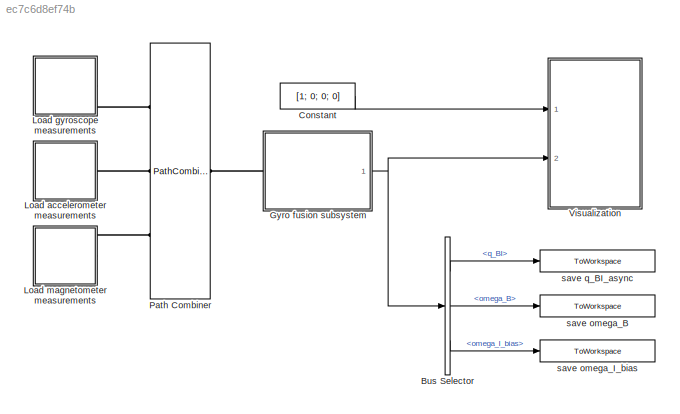
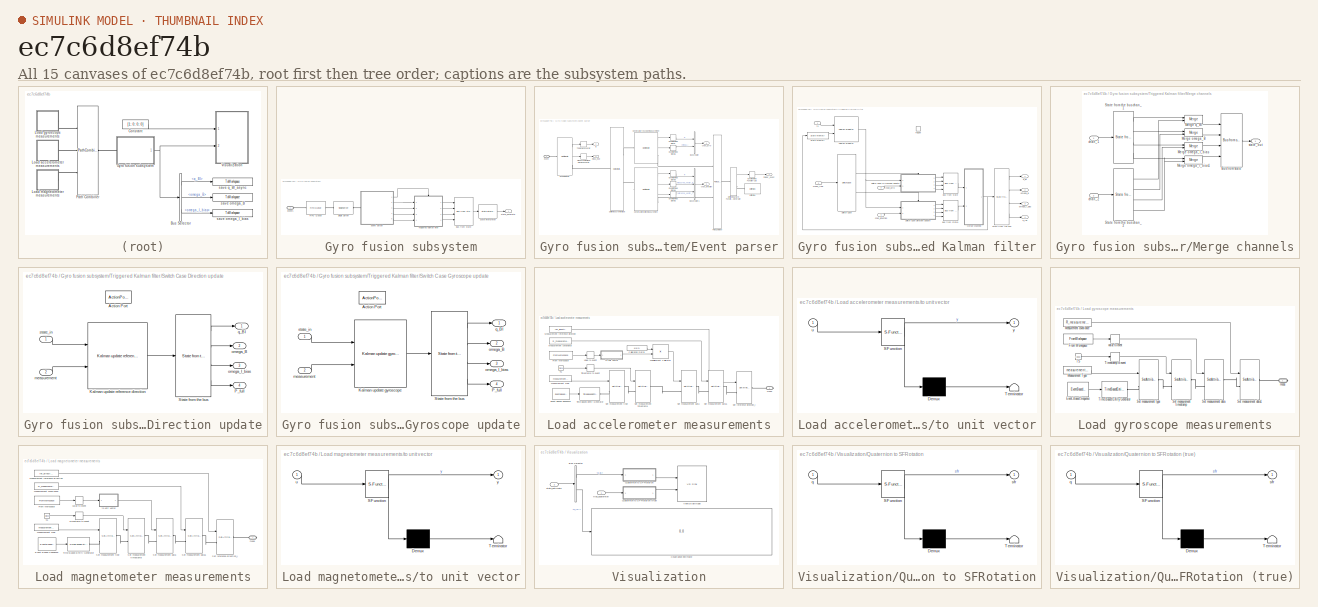
[diagram: thumbnail index - all 15 canvases of the model, root first then tree order]
MODEL slx_ec7c6d8ef74b
KIND model
BLOCK [BusSelector] Bus Selector
  OutputSignals = q_BI,omega_B,omega_I_bias
  Ports = [1, 3]
BLOCK [Constant] Constant
  Value = [1; 0; 0; 0]
BLOCK [SubSystem] Gyro fusion subsystem
  Ports = [0, 1, 0, 0, 0, 1]
  RequestExecContextInheritance = off
BLOCK [Reference] Gyro fusion subsystem/Bus from state  REF=lib_gyro_fusion/Bus from state  (lib defined in slx_a4b6311b9d1d)
  Ports = [4, 1]
  SourceBlock = lib_gyro_fusion/Bus from state
  SourceType = SubSystem
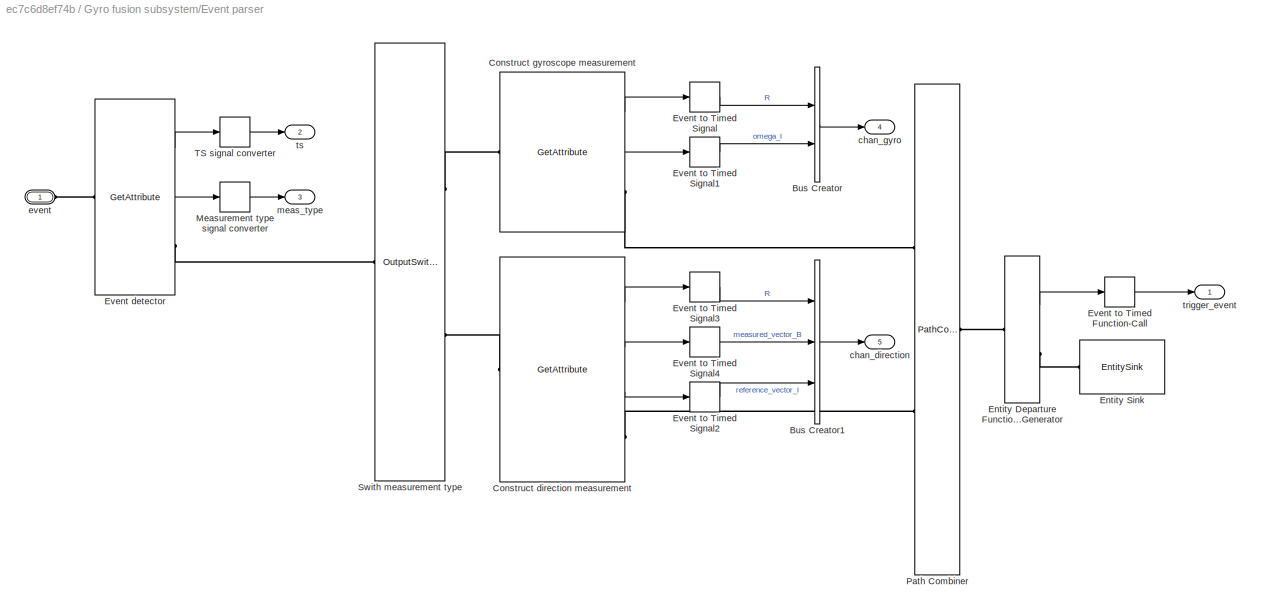
BLOCK [SubSystem] Gyro fusion subsystem/Event parser
  Ports = [0, 5, 0, 0, 0, 1]
  RequestExecContextInheritance = off
BLOCK [BusCreator] Gyro fusion subsystem/Event parser/Bus Creator
  DisplayOption = bar
  Inputs = 2
  Ports = [2, 1]
BLOCK [BusCreator] Gyro fusion subsystem/Event parser/Bus Creator1
  DisplayOption = bar
  Inputs = 3
  Ports = [3, 1]
BLOCK [GetAttribute] Gyro fusion subsystem/Event parser/Construct direction measurement
  AttributeDefaultValue = 1|1|1
  AttributeMissing = Error|Error|Error
  AttributeName = R|value|ref_direction_I
  AttributeSendTiming = After entity departure|After entity departure|After entity departure
  AttributeTreatAsVector = 1|1|1
  EvaluatedDefaultAttributeValue = { [];[];[]}
  OutputPortMap = o1,o2,o3
  Ports = [0, 3, 0, 0, 0, 1, 1]
BLOCK [GetAttribute] Gyro fusion subsystem/Event parser/Construct gyroscope measurement
  AttributeDefaultValue = 1|1
  AttributeMissing = Error|Error
  AttributeName = R|value
  AttributeSendTiming = After entity departure|After entity departure
  AttributeTreatAsVector = 1|1
  EvaluatedDefaultAttributeValue = { [];[]}
  OutputPortMap = o1,o2
  Ports = [0, 2, 0, 0, 0, 1, 1]
BLOCK [EntityDepartureFunctionCallGenerator] Gyro fusion subsystem/Event parser/Entity Departure Function-Call Generator
  OutputPortMap = o0
  Ports = [0, 1, 0, 0, 0, 1, 1]
BLOCK [EntitySink] Gyro fusion subsystem/Event parser/Entity Sink
  Ports = [0, 0, 0, 0, 0, 1]
BLOCK [GetAttribute] Gyro fusion subsystem/Event parser/Event detector
  AttributeDefaultValue = 1|1
  AttributeMissing = Error|Error
  AttributeName = ts|meas_type
  AttributeSendTiming = After entity departure|After entity departure
  AttributeTreatAsVector = 1|1
  EvaluatedDefaultAttributeValue = { [];[]}
  OutputPortMap = o1,o2
  Ports = [0, 2, 0, 0, 0, 1, 1]
BLOCK [EventToTimedFunctionCall] Gyro fusion subsystem/Event parser/Event to Timed Function-Call
  InputPortMap = u0
  OutputPortMap = o0
  Ports = [1, 1]
BLOCK [EventToTimedSignal] Gyro fusion subsystem/Event parser/Event to Timed Signal
  InputPortMap = u0
  OutputPortMap = o0
  Ports = [1, 1]
BLOCK [EventToTimedSignal] Gyro fusion subsystem/Event parser/Event to Timed Signal1
  InputPortMap = u0
  OutputPortMap = o0
  Ports = [1, 1]
BLOCK [EventToTimedSignal] Gyro fusion subsystem/Event parser/Event to Timed Signal2
  InputPortMap = u0
  OutputPortMap = o0
  Ports = [1, 1]
BLOCK [EventToTimedSignal] Gyro fusion subsystem/Event parser/Event to Timed Signal3
  InputPortMap = u0
  OutputPortMap = o0
  Ports = [1, 1]
BLOCK [EventToTimedSignal] Gyro fusion subsystem/Event parser/Event to Timed Signal4
  InputPortMap = u0
  OutputPortMap = o0
  Ports = [1, 1]
BLOCK [EventToTimedSignal] Gyro fusion subsystem/Event parser/Measurement type signal converter
  InputPortMap = u0
  OutputPortMap = o0
  Ports = [1, 1]
BLOCK [PathCombiner] Gyro fusion subsystem/Event parser/Path Combiner
  NumberInputPorts = 2
  Ports = [0, 0, 0, 0, 0, 2, 1]
BLOCK [OutputSwitch] Gyro fusion subsystem/Event parser/Swith measurement type
  AttributeName = meas_type
  NumberOutputPorts = 2
  Ports = [0, 0, 0, 0, 0, 1, 2]
  SwitchingCriterion = From attribute
BLOCK [EventToTimedSignal] Gyro fusion subsystem/Event parser/TS signal converter
  InputPortMap = u0
  OutputPortMap = o0
  Ports = [1, 1]
BLOCK [Outport] Gyro fusion subsystem/Event parser/chan_direction
  IconDisplay = Port number
  Port = 5
BLOCK [Outport] Gyro fusion subsystem/Event parser/chan_gyro
  IconDisplay = Port number
  Port = 4
BLOCK [PMIOPort] Gyro fusion subsystem/Event parser/event
  Port = 1
  Side = Left
BLOCK [Outport] Gyro fusion subsystem/Event parser/meas_type
  IconDisplay = Port number
  Port = 3
BLOCK [Outport] Gyro fusion subsystem/Event parser/trigger_event
  IconDisplay = Port number
BLOCK [Outport] Gyro fusion subsystem/Event parser/ts
  IconDisplay = Port number
  Port = 2
BLOCK [FIFOQueue] Gyro fusion subsystem/FIFO Queue
  Capacity = 500
  Ports = [0, 0, 0, 0, 0, 1, 1]
BLOCK [SingleServer] Gyro fusion subsystem/Single Server
  Ports = [0, 0, 0, 0, 0, 1, 1]
  ServiceTime = 0.001
BLOCK [Reference] Gyro fusion subsystem/State interpreter  REF=lib_gyro_fusion/State interpreter  (lib defined in slx_a4b6311b9d1d)
  Ports = [1, 1]
  SourceBlock = lib_gyro_fusion/State interpreter
  SourceType = SubSystem
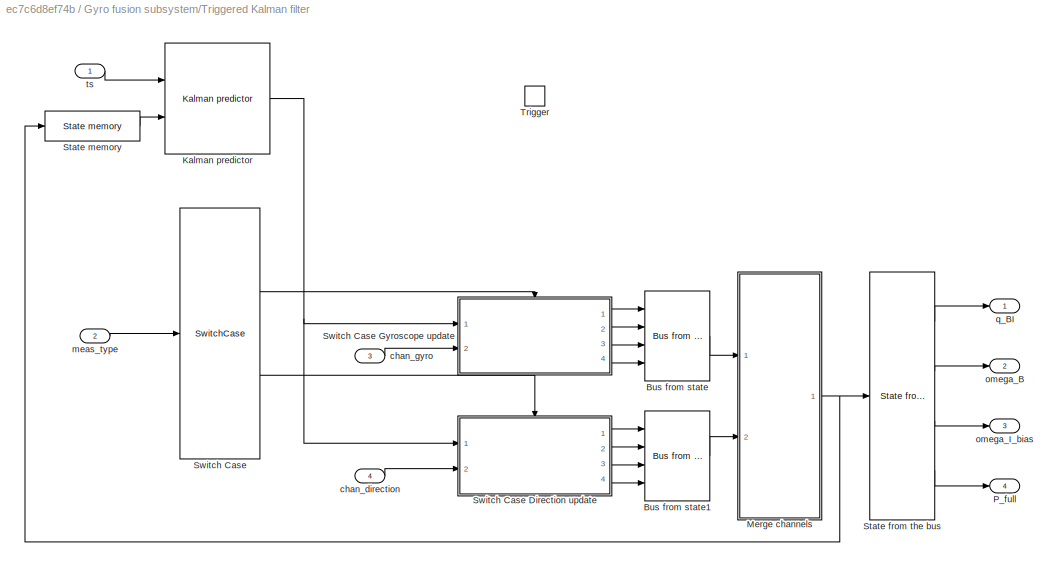
BLOCK [SubSystem] Gyro fusion subsystem/Triggered Kalman filter
  Ports = [4, 4, 0, 1]
  RequestExecContextInheritance = off
  TreatAsAtomicUnit = on
BLOCK [Reference] Gyro fusion subsystem/Triggered Kalman filter/Bus from state  REF=lib_gyro_fusion/Bus from state  (lib defined in slx_a4b6311b9d1d)
  Ports = [4, 1]
  SourceBlock = lib_gyro_fusion/Bus from state
  SourceType = SubSystem
BLOCK [Reference] Gyro fusion subsystem/Triggered Kalman filter/Bus from state1  REF=lib_gyro_fusion/Bus from state  (lib defined in slx_a4b6311b9d1d)
  Ports = [4, 1]
  SourceBlock = lib_gyro_fusion/Bus from state
  SourceType = SubSystem
BLOCK [Reference] Gyro fusion subsystem/Triggered Kalman filter/Kalman predictor  REF=lib_gyro_fusion/Kalman predictor  (lib defined in slx_a4b6311b9d1d)
  Ports = [2, 1]
  SourceBlock = lib_gyro_fusion/Kalman predictor
  omega_B_noise = omega_B_noise
  omega_I_bias_noise = omega_bias_I_noise
  q_noise = q_noise
BLOCK [SubSystem] Gyro fusion subsystem/Triggered Kalman filter/Merge channels
  Ports = [2, 1]
  RequestExecContextInheritance = off
BLOCK [Reference] Gyro fusion subsystem/Triggered Kalman filter/Merge channels/Bus from state  REF=lib_gyro_fusion/Bus from state  (lib defined in slx_a4b6311b9d1d)
  Ports = [4, 1]
  SourceBlock = lib_gyro_fusion/Bus from state
  SourceType = SubSystem
BLOCK [Merge] Gyro fusion subsystem/Triggered Kalman filter/Merge channels/Merge omega_B
  Ports = [2, 1]
BLOCK [Merge] Gyro fusion subsystem/Triggered Kalman filter/Merge channels/Merge omega_I_bias
  Ports = [2, 1]
BLOCK [Merge] Gyro fusion subsystem/Triggered Kalman filter/Merge channels/Merge omega_I_bias1
  Ports = [2, 1]
BLOCK [Merge] Gyro fusion subsystem/Triggered Kalman filter/Merge channels/Merge q_BI
  Ports = [2, 1]
BLOCK [Reference] Gyro fusion subsystem/Triggered Kalman filter/Merge channels/State from the bus chan_1  REF=lib_gyro_fusion/State from the bus  (lib defined in slx_a4b6311b9d1d)
  Ports = [1, 4]
  SourceBlock = lib_gyro_fusion/State from the bus
  SourceType = SubSystem
BLOCK [Reference] Gyro fusion subsystem/Triggered Kalman filter/Merge channels/State from the bus chan_2  REF=lib_gyro_fusion/State from the bus  (lib defined in slx_a4b6311b9d1d)
  Ports = [1, 4]
  SourceBlock = lib_gyro_fusion/State from the bus
  SourceType = SubSystem
BLOCK [Inport] Gyro fusion subsystem/Triggered Kalman filter/Merge channels/chan_1
  IconDisplay = Port number
BLOCK [Inport] Gyro fusion subsystem/Triggered Kalman filter/Merge channels/chan_2
  IconDisplay = Port number
  Port = 2
BLOCK [Outport] Gyro fusion subsystem/Triggered Kalman filter/Merge channels/state_out
  IconDisplay = Port number
BLOCK [Outport] Gyro fusion subsystem/Triggered Kalman filter/P_full
  IconDisplay = Port number
  Port = 4
BLOCK [Reference] Gyro fusion subsystem/Triggered Kalman filter/State from the bus  REF=lib_gyro_fusion/State from the bus  (lib defined in slx_a4b6311b9d1d)
  Ports = [1, 4]
  SourceBlock = lib_gyro_fusion/State from the bus
  SourceType = SubSystem
BLOCK [Reference] Gyro fusion subsystem/Triggered Kalman filter/State memory  REF=lib_gyro_fusion/State memory  (lib defined in slx_a4b6311b9d1d)
  P_full_init = eye(9)
  Ports = [1, 1]
  SourceBlock = lib_gyro_fusion/State memory
  omega_B_init = [0; 0; 0]
  omega_I_bias_init = [0; 0; 0]
  q_BI_init = [1; 0; 0; 0]
BLOCK [SwitchCase] Gyro fusion subsystem/Triggered Kalman filter/Switch Case
  CaseConditions = {1,2}
  Ports = [1, 2]
  ShowDefaultCase = off
BLOCK [SubSystem] Gyro fusion subsystem/Triggered Kalman filter/Switch Case Direction update
  Ports = [2, 4, 0, 0, 0, 0, 0, 1]
  RequestExecContextInheritance = off
  TreatAsAtomicUnit = on
BLOCK [ActionPort] Gyro fusion subsystem/Triggered Kalman filter/Switch Case Direction update/Action Port
  ActionType = case
BLOCK [Reference] Gyro fusion subsystem/Triggered Kalman filter/Switch Case Direction update/Kalman update reference direction  REF=lib_gyro_fusion/Kalman update reference direction  (lib defined in slx_a4b6311b9d1d)
  Ports = [2, 1]
  SourceBlock = lib_gyro_fusion/Kalman update reference direction
  SourceType = SubSystem
BLOCK [Outport] Gyro fusion subsystem/Triggered Kalman filter/Switch Case Direction update/P_full
  IconDisplay = Port number
  Port = 4
BLOCK [Reference] Gyro fusion subsystem/Triggered Kalman filter/Switch Case Direction update/State from the bus  REF=lib_gyro_fusion/State from the bus  (lib defined in slx_a4b6311b9d1d)
  Ports = [1, 4]
  SourceBlock = lib_gyro_fusion/State from the bus
  SourceType = SubSystem
BLOCK [Inport] Gyro fusion subsystem/Triggered Kalman filter/Switch Case Direction update/measurement
  IconDisplay = Port number
  Port = 2
BLOCK [Outport] Gyro fusion subsystem/Triggered Kalman filter/Switch Case Direction update/omega_B
  IconDisplay = Port number
  Port = 2
BLOCK [Outport] Gyro fusion subsystem/Triggered Kalman filter/Switch Case Direction update/omega_I_bias
  IconDisplay = Port number
  Port = 3
BLOCK [Outport] Gyro fusion subsystem/Triggered Kalman filter/Switch Case Direction update/q_BI
  IconDisplay = Port number
BLOCK [Inport] Gyro fusion subsystem/Triggered Kalman filter/Switch Case Direction update/state_in
  IconDisplay = Port number
BLOCK [SubSystem] Gyro fusion subsystem/Triggered Kalman filter/Switch Case Gyroscope update
  Ports = [2, 4, 0, 0, 0, 0, 0, 1]
  RequestExecContextInheritance = off
  TreatAsAtomicUnit = on
BLOCK [ActionPort] Gyro fusion subsystem/Triggered Kalman filter/Switch Case Gyroscope update/Action Port
  ActionType = case
BLOCK [Reference] Gyro fusion subsystem/Triggered Kalman filter/Switch Case Gyroscope update/Kalman update gyroscope  REF=lib_gyro_fusion/Kalman update  (lib defined in slx_a4b6311b9d1d)
gyroscope
  Ports = [2, 1]
  SourceBlock = lib_gyro_fusion/Kalman update\ngyroscope
  SourceType = SubSystem
BLOCK [Outport] Gyro fusion subsystem/Triggered Kalman filter/Switch Case Gyroscope update/P_full
  IconDisplay = Port number
  Port = 4
BLOCK [Reference] Gyro fusion subsystem/Triggered Kalman filter/Switch Case Gyroscope update/State from the bus  REF=lib_gyro_fusion/State from the bus  (lib defined in slx_a4b6311b9d1d)
  Ports = [1, 4]
  SourceBlock = lib_gyro_fusion/State from the bus
  SourceType = SubSystem
BLOCK [Inport] Gyro fusion subsystem/Triggered Kalman filter/Switch Case Gyroscope update/measurement
  IconDisplay = Port number
  Port = 2
BLOCK [Outport] Gyro fusion subsystem/Triggered Kalman filter/Switch Case Gyroscope update/omega_B
  IconDisplay = Port number
  Port = 2
BLOCK [Outport] Gyro fusion subsystem/Triggered Kalman filter/Switch Case Gyroscope update/omega_I_bias
  IconDisplay = Port number
  Port = 3
BLOCK [Outport] Gyro fusion subsystem/Triggered Kalman filter/Switch Case Gyroscope update/q_BI
  IconDisplay = Port number
BLOCK [Inport] Gyro fusion subsystem/Triggered Kalman filter/Switch Case Gyroscope update/state_in
  IconDisplay = Port number
BLOCK [TriggerPort] Gyro fusion subsystem/Triggered Kalman filter/Trigger
  Ports = []
  StatesWhenEnabling = held
  TriggerType = function-call
BLOCK [Inport] Gyro fusion subsystem/Triggered Kalman filter/chan_direction
  IconDisplay = Port number
  Port = 4
BLOCK [Inport] Gyro fusion subsystem/Triggered Kalman filter/chan_gyro
  IconDisplay = Port number
  Port = 3
BLOCK [Inport] Gyro fusion subsystem/Triggered Kalman filter/meas_type
  IconDisplay = Port number
  Port = 2
BLOCK [Outport] Gyro fusion subsystem/Triggered Kalman filter/omega_B
  IconDisplay = Port number
  Port = 2
BLOCK [Outport] Gyro fusion subsystem/Triggered Kalman filter/omega_I_bias
  IconDisplay = Port number
  Port = 3
BLOCK [Outport] Gyro fusion subsystem/Triggered Kalman filter/q_BI
  IconDisplay = Port number
BLOCK [Inport] Gyro fusion subsystem/Triggered Kalman filter/ts
  IconDisplay = Port number
BLOCK [PMIOPort] Gyro fusion subsystem/events
  Port = 1
  Side = Left
BLOCK [Outport] Gyro fusion subsystem/state_estimate
  IconDisplay = Port number
BLOCK [SubSystem] Load accelerometer measurements
  Ports = [0, 0, 0, 0, 0, 0, 1]
  RequestExecContextInheritance = off
BLOCK [Constant] Load accelerometer measurements/Calibration matrix
  Value = eye(3)
BLOCK [EventBasedSequence] Load accelerometer measurements/Event-Based Sequence
  FormOutputOpt = Setting to infinity
  OutputPortMap = o0
  Ports = [0, 1]
  VectorOutputValues = diff(observed_data.time)
BLOCK [FromWorkspace] Load accelerometer measurements/From Workspace
  SampleTime = 0
  VariableName = observed_data
  ZeroCross = on
BLOCK [Constant] Load accelerometer measurements/Measurement Type
  Value = measurement_type
BLOCK [Constant] Load accelerometer measurements/Measurement covariance
  Value = R_measurement
BLOCK [Constant] Load accelerometer measurements/Measurement reference direction
  Value = ref_direction_I
BLOCK [Product] Load accelerometer measurements/Misalignment Calibrator
  InputSameDT = off
  Multiplication = Matrix(*)
  OutDataTypeStr = Inherit: Inherit via internal rule
  Ports = [2, 1]
  RndMeth = Floor
  SaturateOnIntegerOverflow = off
BLOCK [SetAttribute] Load accelerometer measurements/Set measurement data
  AttributeFrom = Signal port
  AttributeName = value
  EvaluatedAttributeValue = { []}
  InputPortMap = u0
  Ports = [1, 0, 0, 0, 0, 1, 1]
BLOCK [SetAttribute] Load accelerometer measurements/Set measurement data1
  AttributeFrom = Signal port
  AttributeName = R
  EvaluatedAttributeValue = { []}
  InputPortMap = u0
  Ports = [1, 0, 0, 0, 0, 1, 1]
BLOCK [SetAttribute] Load accelerometer measurements/Set measurement timestamp
  AttributeFrom = Signal port
  AttributeName = ts
  EvaluatedAttributeValue = { []}
  InputPortMap = u0
  Ports = [1, 0, 0, 0, 0, 1, 1]
BLOCK [SetAttribute] Load accelerometer measurements/Set measurement type
  AttributeFrom = Signal port
  AttributeName = meas_type
  EvaluatedAttributeValue = { []}
  InputPortMap = u0
  Ports = [1, 0, 0, 0, 0, 1, 1]
BLOCK [SetAttribute] Load accelerometer measurements/Set reference direction_I
  AttributeFrom = Signal port
  AttributeName = ref_direction_I
  EvaluatedAttributeValue = { []}
  InputPortMap = u0
  Ports = [1, 0, 0, 0, 0, 1, 1]
BLOCK [Clock] Load accelerometer measurements/TS
BLOCK [TimeBasedEntityGenerator] Load accelerometer measurements/Time-Based Entity Generator
  GenerateEntitiesUpon = Intergeneration time from port t
  InputPortMap = u0
  Ports = [1, 0, 0, 0, 0, 0, 1]
BLOCK [TimedToEventSignal] Load accelerometer measurements/Timestamp to event
  InputPortMap = u0
  OutputPortMap = o0
  Ports = [1, 1]
BLOCK [PMIOPort] Load accelerometer measurements/meas
  Port = 1
  Side = Right
BLOCK [SubSystem] Load accelerometer measurements/to unit vector
  ErrorFcn = Stateflow.Translate.translate
  PermitHierarchicalResolution = ExplicitOnly
  Ports = [1, 1]
  RequestExecContextInheritance = off
  SFBlockType = MATLAB Function
  TreatAsAtomicUnit = on
BLOCK [Demux] Load accelerometer measurements/to unit vector/ Demux 
  Outputs = 1
  Ports = [1, 1]
BLOCK [S-Function] Load accelerometer measurements/to unit vector/ SFunction 
  EnableBusSupport = on
  FunctionName = sf_sfun
  PortCounts = [1 2]
  Ports = [1, 2]
  Tag = Stateflow S-Function gyro_fusion 2
BLOCK [Terminator] Load accelerometer measurements/to unit vector/ Terminator 
BLOCK [Inport] Load accelerometer measurements/to unit vector/u
  IconDisplay = Port number
BLOCK [Outport] Load accelerometer measurements/to unit vector/y
  IconDisplay = Port number
BLOCK [TimedToEventSignal] Load accelerometer measurements/value to event
  InputPortMap = u0
  OutputPortMap = o0
  Ports = [1, 1]
BLOCK [SubSystem] Load gyroscope measurements
  Ports = [0, 0, 0, 0, 0, 0, 1]
  RequestExecContextInheritance = off
BLOCK [EventBasedSequence] Load gyroscope measurements/Event-Based Sequence
  FormOutputOpt = Setting to infinity
  OutputPortMap = o0
  Ports = [0, 1]
  VectorOutputValues = diff(observed_data.time)
BLOCK [FromWorkspace] Load gyroscope measurements/From Workspace
  SampleTime = 0
  VariableName = observed_data
  ZeroCross = on
BLOCK [Constant] Load gyroscope measurements/Measurement Type
  Value = measurement_type
BLOCK [Constant] Load gyroscope measurements/Measurement covariance
  Value = R_measurement
BLOCK [SetAttribute] Load gyroscope measurements/Set measurement data
  AttributeFrom = Signal port
  AttributeName = value
  EvaluatedAttributeValue = { []}
  InputPortMap = u0
  Ports = [1, 0, 0, 0, 0, 1, 1]
BLOCK [SetAttribute] Load gyroscope measurements/Set measurement data1
  AttributeFrom = Signal port
  AttributeName = R
  EvaluatedAttributeValue = { []}
  InputPortMap = u0
  Ports = [1, 0, 0, 0, 0, 1, 1]
BLOCK [SetAttribute] Load gyroscope measurements/Set measurement timestamp
  AttributeFrom = Signal port
  AttributeName = ts
  EvaluatedAttributeValue = { []}
  InputPortMap = u0
  Ports = [1, 0, 0, 0, 0, 1, 1]
BLOCK [SetAttribute] Load gyroscope measurements/Set measurement type
  AttributeFrom = Signal port
  AttributeName = meas_type
  EvaluatedAttributeValue = { []}
  InputPortMap = u0
  Ports = [1, 0, 0, 0, 0, 1, 1]
BLOCK [Clock] Load gyroscope measurements/TS
BLOCK [TimeBasedEntityGenerator] Load gyroscope measurements/Time-Based Entity Generator
  GenerateEntitiesUpon = Intergeneration time from port t
  InputPortMap = u0
  Ports = [1, 0, 0, 0, 0, 0, 1]
BLOCK [TimedToEventSignal] Load gyroscope measurements/Timestamp to event
  InputPortMap = u0
  OutputPortMap = o0
  Ports = [1, 1]
BLOCK [PMIOPort] Load gyroscope measurements/meas
  Port = 1
  Side = Right
BLOCK [TimedToEventSignal] Load gyroscope measurements/value to event
  InputPortMap = u0
  OutputPortMap = o0
  Ports = [1, 1]
BLOCK [SubSystem] Load magnetometer measurements
  Ports = [0, 0, 0, 0, 0, 0, 1]
  RequestExecContextInheritance = off
BLOCK [EventBasedSequence] Load magnetometer measurements/Event-Based Sequence
  FormOutputOpt = Setting to infinity
  OutputPortMap = o0
  Ports = [0, 1]
  VectorOutputValues = diff(observed_data.time)
BLOCK [FromWorkspace] Load magnetometer measurements/From Workspace
  SampleTime = 0
  VariableName = observed_data
  ZeroCross = on
BLOCK [Constant] Load magnetometer measurements/Measurement Type
  Value = measurement_type
BLOCK [Constant] Load magnetometer measurements/Measurement covariance
  Value = R_measurement
BLOCK [Constant] Load magnetometer measurements/Measurement reference direction
  Value = ref_direction_I
BLOCK [SetAttribute] Load magnetometer measurements/Set measurement data
  AttributeFrom = Signal port
  AttributeName = value
  EvaluatedAttributeValue = { []}
  InputPortMap = u0
  Ports = [1, 0, 0, 0, 0, 1, 1]
BLOCK [SetAttribute] Load magnetometer measurements/Set measurement data1
  AttributeFrom = Signal port
  AttributeName = R
  EvaluatedAttributeValue = { []}
  InputPortMap = u0
  Ports = [1, 0, 0, 0, 0, 1, 1]
BLOCK [SetAttribute] Load magnetometer measurements/Set measurement timestamp
  AttributeFrom = Signal port
  AttributeName = ts
  EvaluatedAttributeValue = { []}
  InputPortMap = u0
  Ports = [1, 0, 0, 0, 0, 1, 1]
BLOCK [SetAttribute] Load magnetometer measurements/Set measurement type
  AttributeFrom = Signal port
  AttributeName = meas_type
  EvaluatedAttributeValue = { []}
  InputPortMap = u0
  Ports = [1, 0, 0, 0, 0, 1, 1]
BLOCK [SetAttribute] Load magnetometer measurements/Set reference direction_I
  AttributeFrom = Signal port
  AttributeName = ref_direction_I
  EvaluatedAttributeValue = { []}
  InputPortMap = u0
  Ports = [1, 0, 0, 0, 0, 1, 1]
BLOCK [Clock] Load magnetometer measurements/TS
BLOCK [TimeBasedEntityGenerator] Load magnetometer measurements/Time-Based Entity Generator
  GenerateEntitiesUpon = Intergeneration time from port t
  InputPortMap = u0
  Ports = [1, 0, 0, 0, 0, 0, 1]
BLOCK [TimedToEventSignal] Load magnetometer measurements/Timestamp to event
  InputPortMap = u0
  OutputPortMap = o0
  Ports = [1, 1]
BLOCK [PMIOPort] Load magnetometer measurements/meas
  Port = 1
  Side = Right
BLOCK [SubSystem] Load magnetometer measurements/to unit vector
  ErrorFcn = Stateflow.Translate.translate
  PermitHierarchicalResolution = ExplicitOnly
  Ports = [1, 1]
  RequestExecContextInheritance = off
  SFBlockType = MATLAB Function
  TreatAsAtomicUnit = on
BLOCK [Demux] Load magnetometer measurements/to unit vector/ Demux 
  Outputs = 1
  Ports = [1, 1]
BLOCK [S-Function] Load magnetometer measurements/to unit vector/ SFunction 
  EnableBusSupport = on
  FunctionName = sf_sfun
  PortCounts = [1 2]
  Ports = [1, 2]
  Tag = Stateflow S-Function gyro_fusion 1
BLOCK [Terminator] Load magnetometer measurements/to unit vector/ Terminator 
BLOCK [Inport] Load magnetometer measurements/to unit vector/u
  IconDisplay = Port number
BLOCK [Outport] Load magnetometer measurements/to unit vector/y
  IconDisplay = Port number
BLOCK [TimedToEventSignal] Load magnetometer measurements/value to event
  InputPortMap = u0
  OutputPortMap = o0
  Ports = [1, 1]
BLOCK [PathCombiner] Path Combiner
  Ports = [0, 0, 0, 0, 0, 3, 1]
BLOCK [SubSystem] Visualization
  Ports = [2]
  RequestExecContextInheritance = off
BLOCK [BusSelector] Visualization/Bus Selector
  OutputSignals = q_BI,P_full
  Ports = [1, 2]
BLOCK [Display] Visualization/Covariance estimate
  Decimation = 1
  Ports = [1]
BLOCK [SubSystem] Visualization/Quaternion to SFRotation
  ErrorFcn = Stateflow.Translate.translate
  PermitHierarchicalResolution = ExplicitOnly
  Ports = [1, 1]
  RequestExecContextInheritance = off
  SFBlockType = MATLAB Function
  TreatAsAtomicUnit = on
BLOCK [SubSystem] Visualization/Quaternion to SFRotation (true)
  ErrorFcn = Stateflow.Translate.translate
  PermitHierarchicalResolution = ExplicitOnly
  Ports = [1, 1]
  RequestExecContextInheritance = off
  SFBlockType = MATLAB Function
  TreatAsAtomicUnit = on
BLOCK [Demux] Visualization/Quaternion to SFRotation (true)/ Demux 
  Outputs = 1
  Ports = [1, 1]
BLOCK [S-Function] Visualization/Quaternion to SFRotation (true)/ SFunction 
  EnableBusSupport = on
  FunctionName = sf_sfun
  PortCounts = [1 2]
  Ports = [1, 2]
  Tag = Stateflow S-Function gyro_fusion 12
BLOCK [Terminator] Visualization/Quaternion to SFRotation (true)/ Terminator 
BLOCK [Inport] Visualization/Quaternion to SFRotation (true)/q
  IconDisplay = Port number
BLOCK [Outport] Visualization/Quaternion to SFRotation (true)/sfr
  IconDisplay = Port number
BLOCK [Demux] Visualization/Quaternion to SFRotation/ Demux 
  Outputs = 1
  Ports = [1, 1]
BLOCK [S-Function] Visualization/Quaternion to SFRotation/ SFunction 
  EnableBusSupport = on
  FunctionName = sf_sfun
  PortCounts = [1 2]
  Ports = [1, 2]
  Tag = Stateflow S-Function gyro_fusion 6
BLOCK [Terminator] Visualization/Quaternion to SFRotation/ Terminator 
BLOCK [Inport] Visualization/Quaternion to SFRotation/q
  IconDisplay = Port number
BLOCK [Outport] Visualization/Quaternion to SFRotation/sfr
  IconDisplay = Port number
BLOCK [Reference] Visualization/Vehicle attitude  REF=vrlib/VR Sink
  AllowVariableSize = off
  AutoView = off
  FieldsWritten = Estimated_car.rotation.4.1.1.double#True_car.rotation.4.1.1.double
  InstantiateOnLoad = on
  Ports = [2]
  RemoteChange = off
  RemoteView = off
  SampleTime = 0.1
  SourceBlock = vrlib/VR Sink
  SourceType = Virtual Reality Sink
  VideoDimensions = []
  ViewEnable = on
  WorldFileName = ins.wrl
BLOCK [Inport] Visualization/state_estimate
  IconDisplay = Port number
  Port = 2
BLOCK [Inport] Visualization/true_quaternion
  IconDisplay = Port number
BLOCK [ToWorkspace] save omega_B
  FixptAsFi = on
  MaxDataPoints = inf
  Ports = [1]
  SampleTime = -1
  Save2DSignal = 3-D array (concatenate along third dimension)
  SaveFormat = Timeseries
  VariableName = omega_B_async
BLOCK [ToWorkspace] save omega_I_bias
  FixptAsFi = on
  MaxDataPoints = inf
  Ports = [1]
  SampleTime = -1
  Save2DSignal = 3-D array (concatenate along third dimension)
  SaveFormat = Timeseries
  VariableName = omega_bias_I_async
BLOCK [ToWorkspace] save q_BI_async
  FixptAsFi = on
  MaxDataPoints = inf
  Ports = [1]
  SampleTime = -1
  Save2DSignal = 3-D array (concatenate along third dimension)
  SaveFormat = Timeseries
  VariableName = q_BI_async
LINE Bus Selector:1 -> save q_BI_async:1
LINE Bus Selector:2 -> save omega_B:1
LINE Bus Selector:3 -> save omega_I_bias:1
LINE Constant:1 -> Visualization:1
LINE Gyro fusion subsystem/Bus from state:1 -> Gyro fusion subsystem/State interpreter:1
LINE Gyro fusion subsystem/Event parser/Bus Creator1:1 -> Gyro fusion subsystem/Event parser/chan_direction:1
LINE Gyro fusion subsystem/Event parser/Bus Creator:1 -> Gyro fusion subsystem/Event parser/chan_gyro:1
LINE Gyro fusion subsystem/Event parser/Construct direction measurement:1 -> Gyro fusion subsystem/Event parser/Event to Timed Signal3:1
LINE Gyro fusion subsystem/Event parser/Construct direction measurement:2 -> Gyro fusion subsystem/Event parser/Event to Timed Signal4:1
LINE Gyro fusion subsystem/Event parser/Construct direction measurement:3 -> Gyro fusion subsystem/Event parser/Event to Timed Signal2:1
LINE Gyro fusion subsystem/Event parser/Construct gyroscope measurement:1 -> Gyro fusion subsystem/Event parser/Event to Timed Signal:1
LINE Gyro fusion subsystem/Event parser/Construct gyroscope measurement:2 -> Gyro fusion subsystem/Event parser/Event to Timed Signal1:1
LINE Gyro fusion subsystem/Event parser/Entity Departure Function-Call Generator:1 -> Gyro fusion subsystem/Event parser/Event to Timed Function-Call:1
LINE Gyro fusion subsystem/Event parser/Event detector:1 -> Gyro fusion subsystem/Event parser/TS signal converter:1
LINE Gyro fusion subsystem/Event parser/Event detector:2 -> Gyro fusion subsystem/Event parser/Measurement type signal converter:1
LINE Gyro fusion subsystem/Event parser/Event to Timed Function-Call:1 -> Gyro fusion subsystem/Event parser/trigger_event:1
LINE Gyro fusion subsystem/Event parser/Event to Timed Signal1:1 -> Gyro fusion subsystem/Event parser/Bus Creator:2
LINE Gyro fusion subsystem/Event parser/Event to Timed Signal2:1 -> Gyro fusion subsystem/Event parser/Bus Creator1:3
LINE Gyro fusion subsystem/Event parser/Event to Timed Signal3:1 -> Gyro fusion subsystem/Event parser/Bus Creator1:1
LINE Gyro fusion subsystem/Event parser/Event to Timed Signal4:1 -> Gyro fusion subsystem/Event parser/Bus Creator1:2
LINE Gyro fusion subsystem/Event parser/Event to Timed Signal:1 -> Gyro fusion subsystem/Event parser/Bus Creator:1
LINE Gyro fusion subsystem/Event parser/Measurement type signal converter:1 -> Gyro fusion subsystem/Event parser/meas_type:1
LINE Gyro fusion subsystem/Event parser/TS signal converter:1 -> Gyro fusion subsystem/Event parser/ts:1
LINE Gyro fusion subsystem/Event parser:1 -> Gyro fusion subsystem/Triggered Kalman filter:trigger
LINE Gyro fusion subsystem/Event parser:2 -> Gyro fusion subsystem/Triggered Kalman filter:1
LINE Gyro fusion subsystem/Event parser:3 -> Gyro fusion subsystem/Triggered Kalman filter:2
LINE Gyro fusion subsystem/Event parser:4 -> Gyro fusion subsystem/Triggered Kalman filter:3
LINE Gyro fusion subsystem/Event parser:5 -> Gyro fusion subsystem/Triggered Kalman filter:4
LINE Gyro fusion subsystem/State interpreter:1 -> Gyro fusion subsystem/state_estimate:1
LINE Gyro fusion subsystem/Triggered Kalman filter/Bus from state1:1 -> Gyro fusion subsystem/Triggered Kalman filter/Merge channels:2
LINE Gyro fusion subsystem/Triggered Kalman filter/Bus from state:1 -> Gyro fusion subsystem/Triggered Kalman filter/Merge channels:1
NET Gyro fusion subsystem/Triggered Kalman filter/Kalman predictor:1 -> Gyro fusion subsystem/Triggered Kalman filter/Switch Case Direction update:1, Gyro fusion subsystem/Triggered Kalman filter/Switch Case Gyroscope update:1
LINE Gyro fusion subsystem/Triggered Kalman filter/Merge channels/Bus from state:1 -> Gyro fusion subsystem/Triggered Kalman filter/Merge channels/state_out:1
LINE Gyro fusion subsystem/Triggered Kalman filter/Merge channels/Merge omega_B:1 -> Gyro fusion subsystem/Triggered Kalman filter/Merge channels/Bus from state:2
LINE Gyro fusion subsystem/Triggered Kalman filter/Merge channels/Merge omega_I_bias1:1 -> Gyro fusion subsystem/Triggered Kalman filter/Merge channels/Bus from state:4
LINE Gyro fusion subsystem/Triggered Kalman filter/Merge channels/Merge omega_I_bias:1 -> Gyro fusion subsystem/Triggered Kalman filter/Merge channels/Bus from state:3
LINE Gyro fusion subsystem/Triggered Kalman filter/Merge channels/Merge q_BI:1 -> Gyro fusion subsystem/Triggered Kalman filter/Merge channels/Bus from state:1
LINE Gyro fusion subsystem/Triggered Kalman filter/Merge channels/State from the bus chan_1:1 -> Gyro fusion subsystem/Triggered Kalman filter/Merge channels/Merge q_BI:1
LINE Gyro fusion subsystem/Triggered Kalman filter/Merge channels/State from the bus chan_1:2 -> Gyro fusion subsystem/Triggered Kalman filter/Merge channels/Merge omega_B:1
LINE Gyro fusion subsystem/Triggered Kalman filter/Merge channels/State from the bus chan_1:3 -> Gyro fusion subsystem/Triggered Kalman filter/Merge channels/Merge omega_I_bias:1
LINE Gyro fusion subsystem/Triggered Kalman filter/Merge channels/State from the bus chan_1:4 -> Gyro fusion subsystem/Triggered Kalman filter/Merge channels/Merge omega_I_bias1:1
LINE Gyro fusion subsystem/Triggered Kalman filter/Merge channels/State from the bus chan_2:1 -> Gyro fusion subsystem/Triggered Kalman filter/Merge channels/Merge q_BI:2
LINE Gyro fusion subsystem/Triggered Kalman filter/Merge channels/State from the bus chan_2:2 -> Gyro fusion subsystem/Triggered Kalman filter/Merge channels/Merge omega_B:2
LINE Gyro fusion subsystem/Triggered Kalman filter/Merge channels/State from the bus chan_2:3 -> Gyro fusion subsystem/Triggered Kalman filter/Merge channels/Merge omega_I_bias:2
LINE Gyro fusion subsystem/Triggered Kalman filter/Merge channels/State from the bus chan_2:4 -> Gyro fusion subsystem/Triggered Kalman filter/Merge channels/Merge omega_I_bias1:2
LINE Gyro fusion subsystem/Triggered Kalman filter/Merge channels/chan_1:1 -> Gyro fusion subsystem/Triggered Kalman filter/Merge channels/State from the bus chan_1:1
LINE Gyro fusion subsystem/Triggered Kalman filter/Merge channels/chan_2:1 -> Gyro fusion subsystem/Triggered Kalman filter/Merge channels/State from the bus chan_2:1
NET Gyro fusion subsystem/Triggered Kalman filter/Merge channels:1 -> Gyro fusion subsystem/Triggered Kalman filter/State from the bus:1, Gyro fusion subsystem/Triggered Kalman filter/State memory:1
LINE Gyro fusion subsystem/Triggered Kalman filter/State from the bus:1 -> Gyro fusion subsystem/Triggered Kalman filter/q_BI:1
LINE Gyro fusion subsystem/Triggered Kalman filter/State from the bus:2 -> Gyro fusion subsystem/Triggered Kalman filter/omega_B:1
LINE Gyro fusion subsystem/Triggered Kalman filter/State from the bus:3 -> Gyro fusion subsystem/Triggered Kalman filter/omega_I_bias:1
LINE Gyro fusion subsystem/Triggered Kalman filter/State from the bus:4 -> Gyro fusion subsystem/Triggered Kalman filter/P_full:1
LINE Gyro fusion subsystem/Triggered Kalman filter/State memory:1 -> Gyro fusion subsystem/Triggered Kalman filter/Kalman predictor:2
LINE Gyro fusion subsystem/Triggered Kalman filter/Switch Case Direction update/Kalman update reference direction:1 -> Gyro fusion subsystem/Triggered Kalman filter/Switch Case Direction update/State from the bus:1
LINE Gyro fusion subsystem/Triggered Kalman filter/Switch Case Direction update/State from the bus:1 -> Gyro fusion subsystem/Triggered Kalman filter/Switch Case Direction update/q_BI:1
LINE Gyro fusion subsystem/Triggered Kalman filter/Switch Case Direction update/State from the bus:2 -> Gyro fusion subsystem/Triggered Kalman filter/Switch Case Direction update/omega_B:1
LINE Gyro fusion subsystem/Triggered Kalman filter/Switch Case Direction update/State from the bus:3 -> Gyro fusion subsystem/Triggered Kalman filter/Switch Case Direction update/omega_I_bias:1
LINE Gyro fusion subsystem/Triggered Kalman filter/Switch Case Direction update/State from the bus:4 -> Gyro fusion subsystem/Triggered Kalman filter/Switch Case Direction update/P_full:1
LINE Gyro fusion subsystem/Triggered Kalman filter/Switch Case Direction update/measurement:1 -> Gyro fusion subsystem/Triggered Kalman filter/Switch Case Direction update/Kalman update reference direction:2
LINE Gyro fusion subsystem/Triggered Kalman filter/Switch Case Direction update/state_in:1 -> Gyro fusion subsystem/Triggered Kalman filter/Switch Case Direction update/Kalman update reference direction:1
LINE Gyro fusion subsystem/Triggered Kalman filter/Switch Case Direction update:1 -> Gyro fusion subsystem/Triggered Kalman filter/Bus from state1:1
LINE Gyro fusion subsystem/Triggered Kalman filter/Switch Case Direction update:2 -> Gyro fusion subsystem/Triggered Kalman filter/Bus from state1:2
LINE Gyro fusion subsystem/Triggered Kalman filter/Switch Case Direction update:3 -> Gyro fusion subsystem/Triggered Kalman filter/Bus from state1:3
LINE Gyro fusion subsystem/Triggered Kalman filter/Switch Case Direction update:4 -> Gyro fusion subsystem/Triggered Kalman filter/Bus from state1:4
LINE Gyro fusion subsystem/Triggered Kalman filter/Switch Case Gyroscope update/Kalman update gyroscope:1 -> Gyro fusion subsystem/Triggered Kalman filter/Switch Case Gyroscope update/State from the bus:1
LINE Gyro fusion subsystem/Triggered Kalman filter/Switch Case Gyroscope update/State from the bus:1 -> Gyro fusion subsystem/Triggered Kalman filter/Switch Case Gyroscope update/q_BI:1
LINE Gyro fusion subsystem/Triggered Kalman filter/Switch Case Gyroscope update/State from the bus:2 -> Gyro fusion subsystem/Triggered Kalman filter/Switch Case Gyroscope update/omega_B:1
LINE Gyro fusion subsystem/Triggered Kalman filter/Switch Case Gyroscope update/State from the bus:3 -> Gyro fusion subsystem/Triggered Kalman filter/Switch Case Gyroscope update/omega_I_bias:1
LINE Gyro fusion subsystem/Triggered Kalman filter/Switch Case Gyroscope update/State from the bus:4 -> Gyro fusion subsystem/Triggered Kalman filter/Switch Case Gyroscope update/P_full:1
LINE Gyro fusion subsystem/Triggered Kalman filter/Switch Case Gyroscope update/measurement:1 -> Gyro fusion subsystem/Triggered Kalman filter/Switch Case Gyroscope update/Kalman update gyroscope:2
LINE Gyro fusion subsystem/Triggered Kalman filter/Switch Case Gyroscope update/state_in:1 -> Gyro fusion subsystem/Triggered Kalman filter/Switch Case Gyroscope update/Kalman update gyroscope:1
LINE Gyro fusion subsystem/Triggered Kalman filter/Switch Case Gyroscope update:1 -> Gyro fusion subsystem/Triggered Kalman filter/Bus from state:1
LINE Gyro fusion subsystem/Triggered Kalman filter/Switch Case Gyroscope update:2 -> Gyro fusion subsystem/Triggered Kalman filter/Bus from state:2
LINE Gyro fusion subsystem/Triggered Kalman filter/Switch Case Gyroscope update:3 -> Gyro fusion subsystem/Triggered Kalman filter/Bus from state:3
LINE Gyro fusion subsystem/Triggered Kalman filter/Switch Case Gyroscope update:4 -> Gyro fusion subsystem/Triggered Kalman filter/Bus from state:4
LINE Gyro fusion subsystem/Triggered Kalman filter/Switch Case:1 -> Gyro fusion subsystem/Triggered Kalman filter/Switch Case Gyroscope update:ifaction
LINE Gyro fusion subsystem/Triggered Kalman filter/Switch Case:2 -> Gyro fusion subsystem/Triggered Kalman filter/Switch Case Direction update:ifaction
LINE Gyro fusion subsystem/Triggered Kalman filter/chan_direction:1 -> Gyro fusion subsystem/Triggered Kalman filter/Switch Case Direction update:2
LINE Gyro fusion subsystem/Triggered Kalman filter/chan_gyro:1 -> Gyro fusion subsystem/Triggered Kalman filter/Switch Case Gyroscope update:2
LINE Gyro fusion subsystem/Triggered Kalman filter/meas_type:1 -> Gyro fusion subsystem/Triggered Kalman filter/Switch Case:1
LINE Gyro fusion subsystem/Triggered Kalman filter/ts:1 -> Gyro fusion subsystem/Triggered Kalman filter/Kalman predictor:1
LINE Gyro fusion subsystem/Triggered Kalman filter:1 -> Gyro fusion subsystem/Bus from state:1
LINE Gyro fusion subsystem/Triggered Kalman filter:2 -> Gyro fusion subsystem/Bus from state:2
LINE Gyro fusion subsystem/Triggered Kalman filter:3 -> Gyro fusion subsystem/Bus from state:3
LINE Gyro fusion subsystem/Triggered Kalman filter:4 -> Gyro fusion subsystem/Bus from state:4
NET Gyro fusion subsystem:1 -> Bus Selector:1, Visualization:2
LINE Load accelerometer measurements/Calibration matrix:1 -> Load accelerometer measurements/Misalignment Calibrator:1
LINE Load accelerometer measurements/Event-Based Sequence:1 -> Load accelerometer measurements/Time-Based Entity Generator:1
LINE Load accelerometer measurements/From Workspace:1 -> Load accelerometer measurements/value to event:1
LINE Load accelerometer measurements/Measurement Type:1 -> Load accelerometer measurements/Set measurement type:1
LINE Load accelerometer measurements/Measurement covariance:1 -> Load accelerometer measurements/Set measurement data1:1
LINE Load accelerometer measurements/Measurement reference direction:1 -> Load accelerometer measurements/Set reference direction_I:1
LINE Load accelerometer measurements/Misalignment Calibrator:1 -> Load accelerometer measurements/Set measurement data:1
LINE Load accelerometer measurements/TS:1 -> Load accelerometer measurements/Timestamp to event:1
LINE Load accelerometer measurements/Timestamp to event:1 -> Load accelerometer measurements/Set measurement timestamp:1
LINE Load accelerometer measurements/to unit vector:1 -> Load accelerometer measurements/Misalignment Calibrator:2
LINE Load accelerometer measurements/value to event:1 -> Load accelerometer measurements/to unit vector:1
LINE Load gyroscope measurements/Event-Based Sequence:1 -> Load gyroscope measurements/Time-Based Entity Generator:1
LINE Load gyroscope measurements/From Workspace:1 -> Load gyroscope measurements/value to event:1
LINE Load gyroscope measurements/Measurement Type:1 -> Load gyroscope measurements/Set measurement type:1
LINE Load gyroscope measurements/Measurement covariance:1 -> Load gyroscope measurements/Set measurement data1:1
LINE Load gyroscope measurements/TS:1 -> Load gyroscope measurements/Timestamp to event:1
LINE Load gyroscope measurements/Timestamp to event:1 -> Load gyroscope measurements/Set measurement timestamp:1
LINE Load gyroscope measurements/value to event:1 -> Load gyroscope measurements/Set measurement data:1
LINE Load magnetometer measurements/Event-Based Sequence:1 -> Load magnetometer measurements/Time-Based Entity Generator:1
LINE Load magnetometer measurements/From Workspace:1 -> Load magnetometer measurements/value to event:1
LINE Load magnetometer measurements/Measurement Type:1 -> Load magnetometer measurements/Set measurement type:1
LINE Load magnetometer measurements/Measurement covariance:1 -> Load magnetometer measurements/Set measurement data1:1
LINE Load magnetometer measurements/Measurement reference direction:1 -> Load magnetometer measurements/Set reference direction_I:1
LINE Load magnetometer measurements/TS:1 -> Load magnetometer measurements/Timestamp to event:1
LINE Load magnetometer measurements/Timestamp to event:1 -> Load magnetometer measurements/Set measurement timestamp:1
LINE Load magnetometer measurements/to unit vector:1 -> Load magnetometer measurements/Set measurement data:1
LINE Load magnetometer measurements/value to event:1 -> Load magnetometer measurements/to unit vector:1
LINE Visualization/Bus Selector:1 -> Visualization/Quaternion to SFRotation:1
LINE Visualization/Bus Selector:2 -> Visualization/Covariance estimate:1
LINE Visualization/Quaternion to SFRotation (true):1 -> Visualization/Vehicle attitude:2
LINE Visualization/Quaternion to SFRotation:1 -> Visualization/Vehicle attitude:1
LINE Visualization/state_estimate:1 -> Visualization/Bus Selector:1
LINE Visualization/true_quaternion:1 -> Visualization/Quaternion to SFRotation (true):1
PLINE Gyro fusion subsystem/Event parser/Construct direction measurement:LConn1 -- Gyro fusion subsystem/Event parser/Swith measurement type:RConn2
PLINE Gyro fusion subsystem/Event parser/Construct direction measurement:RConn1 -- Gyro fusion subsystem/Event parser/Path Combiner:LConn2
PLINE Gyro fusion subsystem/Event parser/Construct gyroscope measurement:LConn1 -- Gyro fusion subsystem/Event parser/Swith measurement type:RConn1
PLINE Gyro fusion subsystem/Event parser/Construct gyroscope measurement:RConn1 -- Gyro fusion subsystem/Event parser/Path Combiner:LConn1
PLINE Gyro fusion subsystem/Event parser/Entity Departure Function-Call Generator:LConn1 -- Gyro fusion subsystem/Event parser/Path Combiner:RConn1
PLINE Gyro fusion subsystem/Event parser/Entity Departure Function-Call Generator:RConn1 -- Gyro fusion subsystem/Event parser/Entity Sink:LConn1
PLINE Gyro fusion subsystem/Event parser/Event detector:LConn1 -- Gyro fusion subsystem/Event parser/event:RConn1
PLINE Gyro fusion subsystem/Event parser/Event detector:RConn1 -- Gyro fusion subsystem/Event parser/Swith measurement type:LConn1
PLINE Gyro fusion subsystem/Event parser:LConn1 -- Gyro fusion subsystem/Single Server:RConn1
PLINE Gyro fusion subsystem/FIFO Queue:LConn1 -- Gyro fusion subsystem/events:RConn1
PLINE Gyro fusion subsystem/FIFO Queue:RConn1 -- Gyro fusion subsystem/Single Server:LConn1
PLINE Gyro fusion subsystem:LConn1 -- Path Combiner:RConn1
PLINE Load accelerometer measurements/Set measurement data1:LConn1 -- Load accelerometer measurements/Set measurement data:RConn1
PLINE Load accelerometer measurements/Set measurement data1:RConn1 -- Load accelerometer measurements/Set reference direction_I:LConn1
PLINE Load accelerometer measurements/Set measurement data:LConn1 -- Load accelerometer measurements/Set measurement timestamp:RConn1
PLINE Load accelerometer measurements/Set measurement timestamp:LConn1 -- Load accelerometer measurements/Set measurement type:RConn1
PLINE Load accelerometer measurements/Set measurement type:LConn1 -- Load accelerometer measurements/Time-Based Entity Generator:RConn1
PLINE Load accelerometer measurements/Set reference direction_I:RConn1 -- Load accelerometer measurements/meas:RConn1
PLINE Load accelerometer measurements:RConn1 -- Path Combiner:LConn2
PLINE Load gyroscope measurements/Set measurement data1:LConn1 -- Load gyroscope measurements/Set measurement data:RConn1
PLINE Load gyroscope measurements/Set measurement data1:RConn1 -- Load gyroscope measurements/meas:RConn1
PLINE Load gyroscope measurements/Set measurement data:LConn1 -- Load gyroscope measurements/Set measurement timestamp:RConn1
PLINE Load gyroscope measurements/Set measurement timestamp:LConn1 -- Load gyroscope measurements/Set measurement type:RConn1
PLINE Load gyroscope measurements/Set measurement type:LConn1 -- Load gyroscope measurements/Time-Based Entity Generator:RConn1
PLINE Load gyroscope measurements:RConn1 -- Path Combiner:LConn1
PLINE Load magnetometer measurements/Set measurement data1:LConn1 -- Load magnetometer measurements/Set measurement data:RConn1
PLINE Load magnetometer measurements/Set measurement data1:RConn1 -- Load magnetometer measurements/Set reference direction_I:LConn1
PLINE Load magnetometer measurements/Set measurement data:LConn1 -- Load magnetometer measurements/Set measurement timestamp:RConn1
PLINE Load magnetometer measurements/Set measurement timestamp:LConn1 -- Load magnetometer measurements/Set measurement type:RConn1
PLINE Load magnetometer measurements/Set measurement type:LConn1 -- Load magnetometer measurements/Time-Based Entity Generator:RConn1
PLINE Load magnetometer measurements/Set reference direction_I:RConn1 -- Load magnetometer measurements/meas:RConn1
PLINE Load magnetometer measurements:RConn1 -- Path Combiner:LConn3
note: NET lines group one-source signal fan-out (src -> all destinations, sorted); 1:1 wires keep LINE
